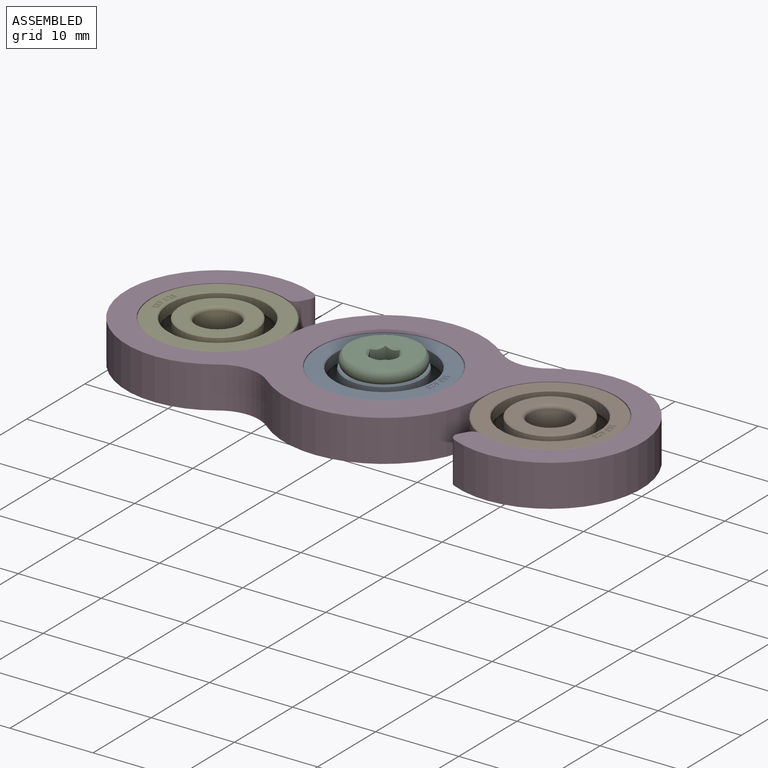
[diagram: assembled view]
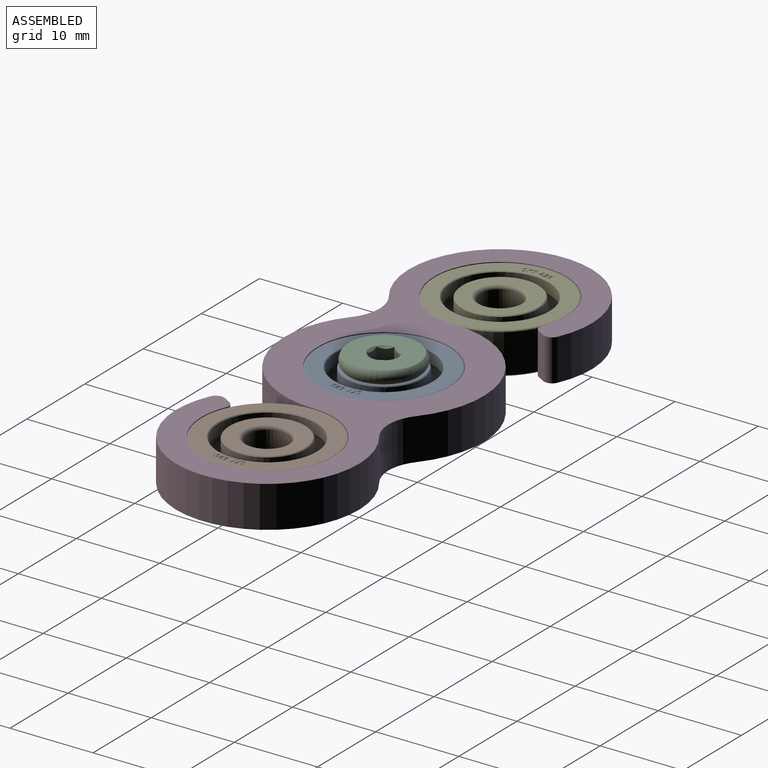
[diagram: assembled view, second angle]
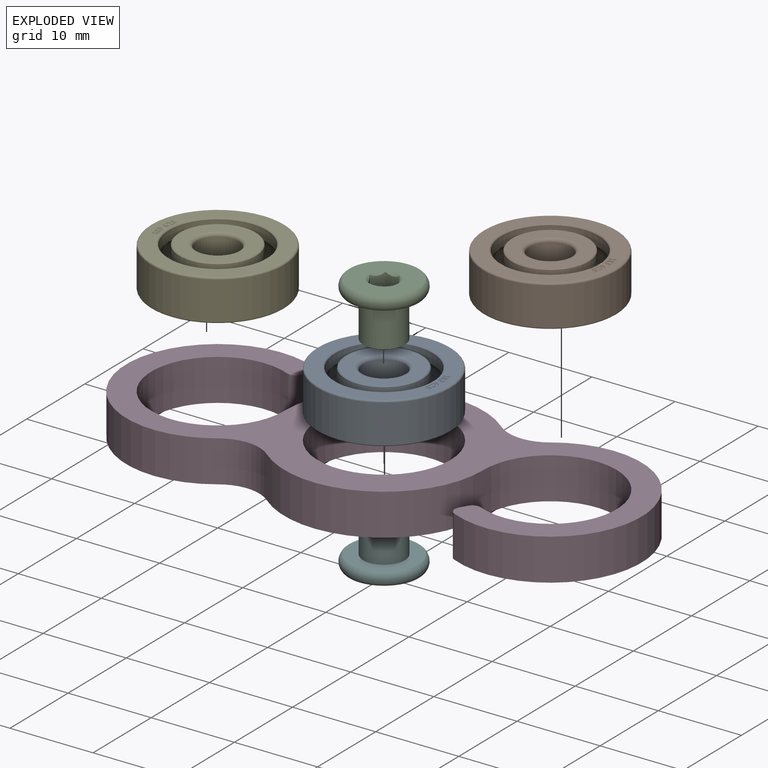
[diagram: exploded view]
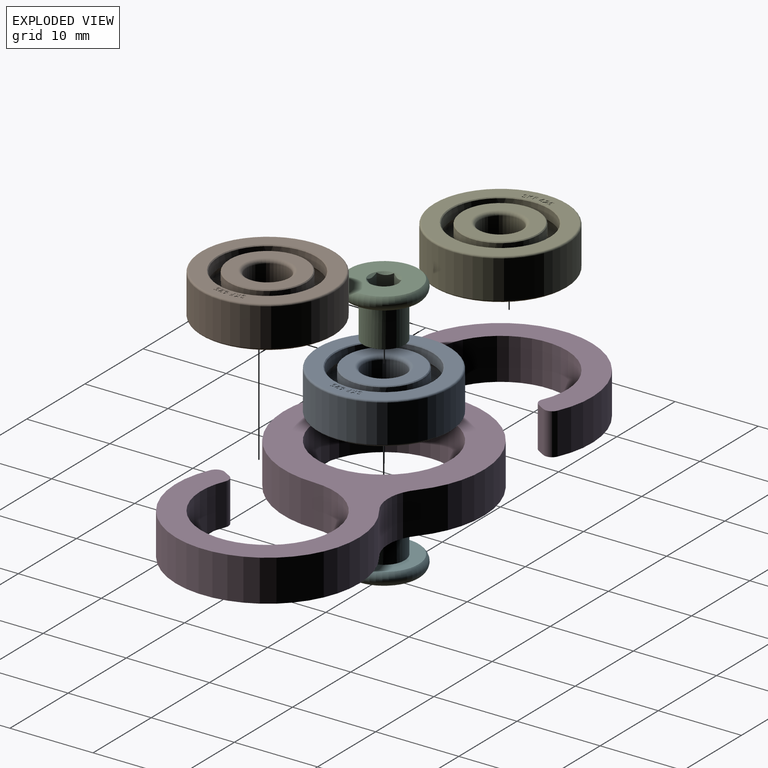
[diagram: exploded view, second angle]
ASSEMBLY  parts=6 mates=5
PART A: 133 faces, bbox 5x17.3x17.3 mm
  f0: torus R=5.25mm, axis (1,0,0), area 7mm2, adj f1,f2,f3,f4
  f1: cylinder r=4.62mm len=9.25mm, axis (1,0,0), area 38.1mm2, adj f0,f2,f4,f5,f6,f7,f8,f9
  f2: sphere r=1.3mm, area 1.8mm2, adj f0,f1,f3,f10
  f3: cylinder r=4.62mm len=9.25mm, axis (1,0,0), area 38.1mm2, adj f0,f2,f4,f6,f7,f8,f9,f10
  f4: sphere r=1.3mm, area 1.8mm2, adj f0,f1,f3,f9
  f5: cone r=4.53mm half-angle=45deg, axis (-1,0,0), area 4.1mm2, adj f1,f20
  f6: sphere r=1.3mm, area 1.8mm2, adj f1,f3,f7,f18
  f7: torus R=5.25mm, axis (1,0,0), area 7mm2, adj f1,f3,f6,f8
  f8: sphere r=1.3mm, area 1.8mm2, adj f1,f3,f7,f9
  f9: torus R=5.25mm, axis (1,0,0), area 7mm2, adj f1,f3,f4,f8
  f10: torus R=5.25mm, axis (1,0,0), area 7mm2, adj f1,f2,f3,f11
  f11: sphere r=1.3mm, area 1.8mm2, adj f1,f3,f10,f12
  f12: torus R=5.25mm, axis (1,0,0), area 7mm2, adj f1,f3,f11,f13
  f13: sphere r=1.3mm, area 1.8mm2, adj f1,f3,f12,f14
  f14: torus R=5.25mm, axis (1,0,0), area 7mm2, adj f1,f3,f13,f15
  f15: sphere r=1.3mm, area 1.8mm2, adj f1,f3,f14,f16
  f16: torus R=5.25mm, axis (1,0,0), area 7mm2, adj f1,f3,f15,f17
  f17: sphere r=1.3mm, area 1.8mm2, adj f1,f3,f16,f18
  f18: torus R=5.25mm, axis (1,0,0), area 7mm2, adj f1,f3,f6,f17
  f19: cone r=4.62mm half-angle=45deg, axis (1,0,0), area 4.1mm2, adj f3,f21
  f20: plane 9.05x9.05mm, normal (1,0,0), area 37.5mm2, adj f5,f22
  f21: plane 9.05x9.05mm, normal (-1,0,0), area 37.5mm2, adj f19,f23
  f22: torus R=2.92mm, axis (1,0,0), area 11mm2, adj f20,f24
  f23: torus R=2.92mm, axis (1,0,0), area 11mm2, adj f21,f24
  f24: cylinder r=2.5mm len=5mm, axis (1,0,0), area 65.3mm2, adj f22,f23
  f25: sphere r=1.3mm, area 2.1mm2, adj f26,f27,f28,f29
  f26: torus R=5.25mm, axis (1,0,0), area 10.8mm2, adj f25,f27,f29,f30
  f27: cylinder r=5.88mm len=11.75mm, axis (1,0,0), area 48.5mm2, adj f25,f26,f28,f30,f31,f32,f33,f34
  f28: torus R=5.25mm, axis (1,0,0), area 10.8mm2, adj f25,f27,f29,f42
  f29: cylinder r=5.88mm len=11.75mm, axis (1,0,0), area 48.5mm2, adj f25,f26,f28,f30,f31,f32,f33,f34
  f30: sphere r=1.3mm, area 2.1mm2, adj f26,f27,f29,f31
  f31: torus R=5.25mm, axis (1,0,0), area 10.8mm2, adj f27,f29,f30,f32
  f32: sphere r=1.3mm, area 2.1mm2, adj f27,f29,f31,f33
  f33: torus R=5.25mm, axis (1,0,0), area 10.8mm2, adj f27,f29,f32,f34
  f34: sphere r=1.3mm, area 2.1mm2, adj f27,f29,f33,f35
  f35: torus R=5.25mm, axis (1,0,0), area 10.8mm2, adj f27,f29,f34,f36
  f36: sphere r=1.3mm, area 2.1mm2, adj f27,f29,f35,f37
  f37: torus R=5.25mm, axis (1,0,0), area 10.8mm2, adj f27,f29,f36,f38
  f38: sphere r=1.3mm, area 2.1mm2, adj f27,f29,f37,f39
  f39: torus R=5.25mm, axis (1,0,0), area 10.8mm2, adj f27,f29,f38,f40
  f40: sphere r=1.3mm, area 2.1mm2, adj f27,f29,f39,f41
  f41: torus R=5.25mm, axis (1,0,0), area 10.8mm2, adj f27,f29,f40,f42
  f42: sphere r=1.3mm, area 2.1mm2, adj f27,f28,f29,f41
  f43: cone r=5.98mm half-angle=45deg, axis (-1,0,0), area 5.3mm2, adj f27,f45
  f44: cone r=5.88mm half-angle=45deg, axis (1,0,0), area 5.3mm2, adj f29,f46
  f45: plane 15.58x15.58mm, normal (-1,0,0), area 78.5mm2, adj f43,f47
  f46: plane 15.58x15.58mm, normal (1,0,0), area 77.4mm2, adj f44,f48,f49,f50,f51,f52,f53,f54
  f47: torus R=7.79mm, axis (1,0,0), area 16.4mm2, adj f45,f121
  f48: torus R=7.79mm, axis (1,0,0), area 16.4mm2, adj f46,f121
  f49: plane 0.13x0.05mm, normal (0,0.16,0.99), area 0mm2, adj f46,f50,f61,f122
  f50: bspline ~0.27x0.21mm, area 0mm2, adj f46,f49,f51,f122
  f51: bspline ~0.24x0.19mm, area 0mm2, adj f46,f50,f52,f122
  f52: bspline ~0.27x0.21mm, area 0mm2, adj f46,f51,f53,f122
  f53: plane 0.09x0.07mm, normal (0,-0.61,0.79), area 0mm2, adj f46,f52,f54,f122
  f54: plane 0.25x0.05mm, normal (0,-0.16,-0.99), area 0mm2, adj f46,f53,f55,f122
  f55: plane 0.12x0.05mm, normal (0,-0.99,0.16), area 0mm2, adj f46,f54,f56,f122
  f56: plane 0.48x0.08mm, normal (0,0.16,0.99), area 0mm2, adj f46,f55,f57,f122
  f57: plane 0.06x0.05mm, normal (0,0.99,-0.16), area 0mm2, adj f46,f56,f58,f122
  f58: plane 0.25x0.18mm, normal (0,0.6,-0.8), area 0mm2, adj f46,f57,f59,f122
  f59: bspline ~0.19x0.16mm, area 0mm2, adj f46,f58,f60,f122
  f60: bspline ~0.11x0.08mm, area 0mm2, adj f46,f59,f61,f122
  f61: bspline ~0.12x0.1mm, area 0mm2, adj f46,f49,f60,f122
  f62: plane 0.12x0.05mm, normal (0,-0.97,0.22), area 0mm2, adj f46,f63,f76,f123
  f63: plane 0.22x0.05mm, normal (0,0.22,0.97), area 0mm2, adj f46,f62,f64,f123
  f64: plane 0.12x0.06mm, normal (0,-0.9,0.43), area 0mm2, adj f46,f63,f65,f123
  f65: bspline ~0.05x0.05mm, area 0mm2, adj f46,f64,f66,f123
  f66: bspline ~0.27x0.17mm, area 0mm2, adj f46,f65,f67,f123
  f67: bspline ~0.29x0.19mm, area 0mm2, adj f46,f66,f68,f123
  f68: bspline ~0.24x0.19mm, area 0mm2, adj f46,f67,f69,f123
  f69: plane 0.14x0.05mm, normal (0,-0.22,-0.97), area 0mm2, adj f46,f68,f70,f123
  f70: bspline ~0.09x0.08mm, area 0mm2, adj f46,f69,f71,f123
  f71: bspline ~0.13x0.09mm, area 0mm2, adj f46,f70,f72,f123
  f72: bspline ~0.13x0.07mm, area 0mm2, adj f46,f71,f73,f123
  f73: bspline ~0.09x0.05mm, area 0mm2, adj f46,f72,f74,f123
  f74: plane 0.1x0.05mm, normal (0,0.43,0.9), area 0mm2, adj f46,f73,f75,f123
  f75: plane 0.36x0.17mm, normal (0,0.9,-0.43), area 0mm2, adj f46,f74,f76,f123
  f76: plane 0.32x0.07mm, normal (0,-0.22,-0.97), area 0mm2, adj f46,f62,f75,f123
  f77: plane 0.23x0.14mm, normal (0,-0.85,0.52), area 0mm2, adj f46,f78,f83,f124
  f78: bspline ~0.24x0.2mm, area 0mm2, adj f46,f77,f79,f124
  f79: bspline ~0.23x0.2mm, area 0mm2, adj f46,f78,f80,f124
  f80: bspline ~0.23x0.21mm, area 0mm2, adj f46,f79,f81,f124
  f81: bspline ~0.16x0.07mm, area 0mm2, adj f46,f80,f82,f124
  f82: plane 0.34x0.2mm, normal (0,0.86,-0.52), area 0mm2, adj f46,f81,f83,f124
  f83: plane 0.11x0.06mm, normal (0,-0.51,-0.86), area 0mm2, adj f46,f77,f82,f124
  f84: plane 0.13x0.05mm, normal (0,-1,-0.06), area 0mm2, adj f46,f85,f93,f125
  f85: plane 0.21x0.05mm, normal (0,-0.06,1), area 0mm2, adj f46,f84,f86,f125
  f86: plane 0.13x0.05mm, normal (0,-1,-0.07), area 0mm2, adj f46,f85,f87,f125
  f87: plane 0.21x0.05mm, normal (0,0.06,-1), area 0mm2, adj f46,f86,f88,f125
  f88: plane 0.13x0.05mm, normal (0,-1,-0.06), area 0mm2, adj f46,f87,f89,f125
  f89: plane 0.21x0.05mm, normal (0,-0.06,1), area 0mm2, adj f46,f88,f90,f125
  f90: plane 0.31x0.05mm, normal (0,-1,-0.06), area 0mm2, adj f46,f89,f91,f125
  f91: plane 0.13x0.05mm, normal (0,-0.06,1), area 0mm2, adj f46,f90,f92,f125
  f92: plane 0.7x0.05mm, normal (0,1,0.06), area 0mm2, adj f46,f91,f93,f125
  f93: plane 0.35x0.05mm, normal (0,0.06,-1), area 0mm2, adj f46,f84,f92,f125
  f94: plane 0.24x0.05mm, normal (0,-0.99,-0.15), area 0mm2, adj f46,f95,f104,f126
  f95: plane 0.27x0.15mm, normal (0,0.87,-0.49), area 0mm2, adj f46,f94,f96,f126
  f96: plane 0.16x0.05mm, normal (0,0.15,-0.99), area 0mm2, adj f46,f95,f97,f126
  f97: plane 0.34x0.19mm, normal (0,-0.87,0.49), area 0mm2, adj f46,f96,f98,f126
  f98: plane 0.34x0.32mm, normal (0,-0.73,-0.69), area 0mm2, adj f46,f97,f99,f126
  f99: plane 0.16x0.05mm, normal (0,-0.15,0.99), area 0mm2, adj f46,f98,f100,f126
  f100: plane 0.27x0.26mm, normal (0,0.73,0.69), area 0mm2, adj f46,f99,f101,f126
  f101: plane 0.31x0.05mm, normal (0,-0.99,-0.15), area 0mm2, adj f46,f100,f102,f126
  f102: plane 0.13x0.05mm, normal (0,-0.15,0.99), area 0mm2, adj f46,f101,f103,f126
  f103: plane 0.69x0.11mm, normal (0,0.99,0.15), area 0mm2, adj f46,f102,f104,f126
  f104: plane 0.13x0.05mm, normal (0,0.15,-0.99), area 0mm2, adj f46,f94,f103,f126
  f105: plane 0.11x0.08mm, normal (0,-0.82,0.57), area 0mm2, adj f46,f106,f120,f127
  f106: bspline ~0.12x0.05mm, area 0mm2, adj f46,f105,f107,f127
  f107: bspline ~0.06x0.05mm, area 0mm2, adj f46,f106,f108,f127
  f108: bspline ~0.05x0.03mm, area 0mm2, adj f46,f107,f109,f127
  f109: bspline ~0.12x0.06mm, area 0mm2, adj f46,f108,f110,f127
  f110: bspline ~0.11x0.06mm, area 0mm2, adj f46,f109,f111,f127
  f111: bspline ~0.14x0.11mm, area 0mm2, adj f46,f110,f112,f127
  f112: bspline ~0.24x0.17mm, area 0mm2, adj f46,f111,f113,f127
  f113: bspline ~0.25x0.1mm, area 0mm2, adj f46,f112,f114,f127
  f114: plane 0.09x0.09mm, normal (0,0.7,-0.71), area 0mm2, adj f46,f113,f115,f127
  f115: bspline ~0.13x0.07mm, area 0mm2, adj f46,f114,f116,f127
  f116: bspline ~0.08x0.07mm, area 0mm2, adj f46,f115,f117,f127
  f117: bspline ~0.12x0.09mm, area 0mm2, adj f46,f116,f118,f127
  f118: bspline ~0.23x0.19mm, area 0mm2, adj f46,f117,f119,f127
  f119: bspline ~0.22x0.15mm, area 0mm2, adj f46,f118,f120,f127
  f120: bspline ~0.22x0.07mm, area 0mm2, adj f46,f105,f119,f127
  f121: cylinder r=8mm len=16mm, axis (1,0,0), area 230.2mm2, adj f47,f48
  f122: plane 0.75x0.55mm, normal (1,0,0), area 0.2mm2, adj f49,f50,f51,f52,f53,f54,f55,f56
  f123: plane 0.72x0.57mm, normal (1,0,0), area 0.2mm2, adj f62,f63,f64,f65,f66,f67,f68,f69
  f124: plane 0.73x0.44mm, normal (1,0,0), area 0.2mm2, adj f77,f78,f79,f80,f81,f82,f83,f128
  f125: plane 0.72x0.37mm, normal (1,0,0), area 0.1mm2, adj f84,f85,f86,f87,f88,f89,f90,f91
  f126: plane 0.76x0.61mm, normal (1,0,0), area 0.2mm2, adj f94,f95,f96,f97,f98,f99,f100,f101
  f127: plane 0.73x0.49mm, normal (1,0,0), area 0.2mm2, adj f105,f106,f107,f108,f109,f110,f111,f112
  f128: bspline ~0.09x0.09mm, area 0mm2, adj f124,f129,f131,f132
  f129: bspline ~0.1x0.08mm, area 0mm2, adj f124,f128,f130,f132
  f130: bspline ~0.1x0.09mm, area 0mm2, adj f124,f129,f131,f132
  f131: bspline ~0.1x0.08mm, area 0mm2, adj f124,f128,f130,f132
  f132: plane 0.19x0.18mm, normal (1,0,0), area 0mm2, adj f128,f129,f130,f131
PART B: same geometry as A
PART C: 13 faces, bbox 6.8x9.7x9.7 mm
  f0: cylinder r=2.5mm len=5mm, axis (1,0,0), area 78.5mm2, adj f3,f12
  f1: plane 8.32x8.32mm, normal (-1,0,0), area 44.4mm2, adj f2,f4
  f2: torus R=3.5mm, axis (-1,0,0), area 46.7mm2, adj f1,f3
  f3: plane 8.32x8.32mm, normal (1,0,0), area 34.8mm2, adj f0,f2
  f4: cone r=1.78mm half-angle=45deg, axis (-1,0,0), area 3.1mm2, adj f1,f6,f7,f8,f9,f10,f11
  f5: plane 3.46x3mm, normal (-1,0,0), area 7.8mm2, adj f6,f7,f8,f9,f10,f11
  f6: plane 2.25x1.5mm, normal (0,-0.5,-0.87), area 3.6mm2, adj f4,f5,f7,f11
  f7: plane 2.25x1.73mm, normal (0,-1,0), area 3.6mm2, adj f4,f5,f6,f8
  f8: plane 2.25x1.5mm, normal (0,-0.5,0.87), area 3.6mm2, adj f4,f5,f7,f9
  f9: plane 2.25x1.5mm, normal (0,0.5,0.87), area 3.6mm2, adj f4,f5,f8,f10
  f10: plane 2.25x1.73mm, normal (0,1,0), area 3.6mm2, adj f4,f5,f9,f11
  f11: plane 2.25x1.5mm, normal (0,0.5,-0.87), area 3.6mm2, adj f4,f5,f6,f10
  f12: plane 5x5mm, normal (1,0,0), area 19.6mm2, adj f0
PART D: 17 faces, bbox 62x24x5 mm
  f0: cylinder r=5mm len=6.05mm, axis (0,0,-1), area 32.5mm2, adj f1,f13,f15,f16
  f1: cylinder r=12mm len=19.64mm, axis (0,0,-1), area 135.7mm2, adj f0,f2,f15,f16
  f2: cylinder r=8mm len=16mm, axis (0,0,-1), area 205mm2, adj f1,f3,f15,f16
  f3: cylinder r=1mm len=5mm, axis (0,0,-1), area 7.3mm2, adj f2,f4,f15,f16
  f4: plane 5x0.87mm, normal (-0.87,0.5,0), area 5mm2, adj f3,f5,f15,f16
  f5: cylinder r=1mm len=5mm, axis (0,0,-1), area 8.4mm2, adj f4,f6,f15,f16
  f6: cylinder r=11mm len=22mm, axis (0,0,-1), area 229.7mm2, adj f5,f7,f15,f16
  f7: cylinder r=5mm len=6.05mm, axis (0,0,-1), area 32.5mm2, adj f6,f8,f15,f16
  f8: cylinder r=12mm len=19.64mm, axis (0,0,-1), area 135.7mm2, adj f7,f9,f15,f16
  f9: cylinder r=8mm len=16mm, axis (0,0,-1), area 205mm2, adj f8,f10,f15,f16
  f10: cylinder r=1mm len=5mm, axis (0,0,-1), area 7.3mm2, adj f9,f11,f15,f16
  f11: plane 5x0.87mm, normal (0.87,-0.5,0), area 5mm2, adj f10,f12,f15,f16
  f12: cylinder r=1mm len=5mm, axis (0,0,-1), area 8.4mm2, adj f11,f13,f15,f16
  f13: cylinder r=11mm len=22mm, axis (0,0,-1), area 229.7mm2, adj f0,f12,f15,f16
  f14: cylinder r=8mm len=16mm, axis (0,0,-1), area 251.3mm2, adj f15,f16
  f15: plane 62x24mm, normal (0,0,1), area 535.6mm2, adj f0,f1,f2,f3,f4,f5,f6,f7
  f16: plane 62x24mm, normal (0,0,-1), area 535.6mm2, adj f0,f1,f2,f3,f4,f5,f6,f7
PART E: same geometry as A
PART F: same geometry as C
PLACE A rot(axis=(0.71,0,0.71),180deg) t=(0,0,5)mm
PLACE B rot(axis=(0.71,0,0.71),180deg) t=(20,0,5)mm
PLACE C rot(axis=(0,1,0),90deg) t=(0,0,-10)mm
PLACE D at identity
PLACE E rot(axis=(0,-1,0),90deg) t=(-20,0,5)mm
PLACE F rot(axis=(0,-1,0),90deg) t=(0,0,15)mm
MATE fastened B.f0 <-> D.f2  axis (0,0,1) through (20,0,5)mm
MATE fastened C.f0 <-> A.f0  axis (0,0,-1) through (0,0,5)mm
MATE fastened F.f0 <-> A.f0  axis (0,0,1) through (0,0,0)mm
MATE fastened E.f0 <-> D.f9  axis (0,0,1) through (-20,0,5)mm
MATE fastened A.f0 <-> D.f14  axis (0,0,1) through (0,0,5)mm
